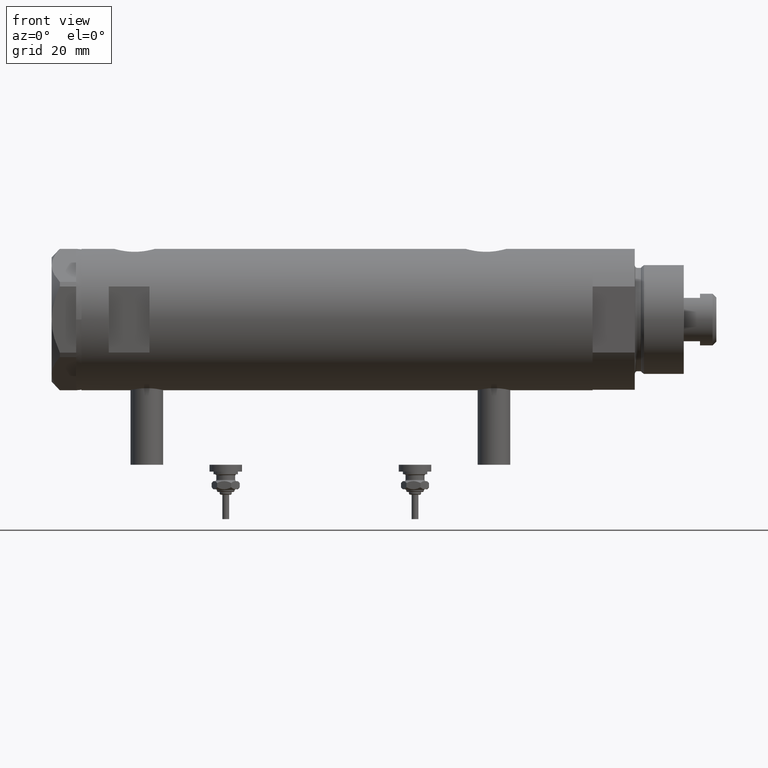
[diagram: clean part render]
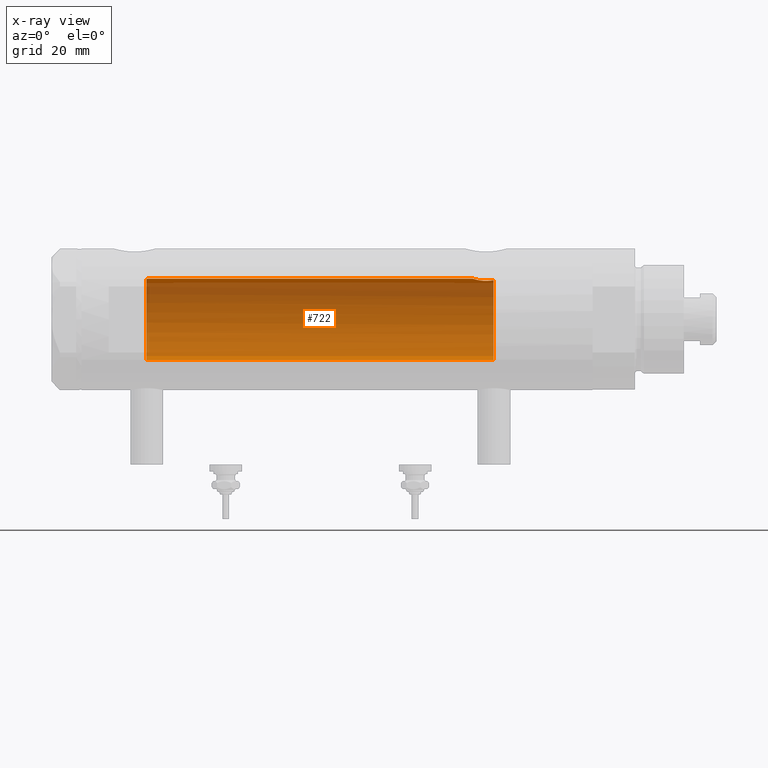
[diagram: x-ray — body ghosted, one internal face saturated and labeled with its STEP entity id]
A machine part, front view, then the same camera in x-ray: the body is ghosted and one INTERNAL B-rep face — a face not visible from any outside direction — is saturated and labeled: STEP entity #722.
In plain terms, the highlighted cylindrical surface (partial cylindrical patch) has radius 15 mm, axis along (1, 0, -0).
Its self-contained STEP definition (entity closure, byte-faithful):
#106 = CARTESIAN_POINT ( 'NONE',  ( 0.000000000000000000, 0.000000000000000000, -57.55000000000000426 ) ) ;
#117 = CARTESIAN_POINT ( 'NONE',  ( -15.00000000000000000, 0.000000000000000000, 70.15000000000000568 ) ) ;
#223 = CARTESIAN_POINT ( 'NONE',  ( 14.72004460873233000, 2.909758128378248987, -50.82614485536701210 ) ) ;
#262 = ORIENTED_EDGE ( 'NONE', *, *, #6178, .T. ) ;
#386 = CARTESIAN_POINT ( 'NONE',  ( 14.82638779339053947, 2.275571356824483082, 70.15000000000000568 ) ) ;
#436 = CARTESIAN_POINT ( 'NONE',  ( 14.25831405531604545, 4.659025730769700502, -56.16798855846089822 ) ) ;
#687 = CARTESIAN_POINT ( 'NONE',  ( 0.000000000000000000, 0.000000000000000000, 70.15000000000000568 ) ) ;
#696 = CARTESIAN_POINT ( 'NONE',  ( 14.84719462287499958, 2.145357993387301043, -50.37798666051605778 ) ) ;
#714 = CARTESIAN_POINT ( 'NONE',  ( 14.93895715383719214, 1.365440931094928256, 69.77638192761232006 ) ) ;
#722 = ADVANCED_FACE ( 'NONE', ( #4786 ), #4371, .F. ) ;
#724 = DIRECTION ( 'NONE',  ( 1.000000000000000000, 0.000000000000000000, 0.000000000000000000 ) ) ;
#913 = CARTESIAN_POINT ( 'NONE',  ( 15.00000000000000000, 5.959273468635536151E-16, -49.88499999999999801 ) ) ;
#915 = CARTESIAN_POINT ( 'NONE',  ( 14.33601656325283180, 4.414747171699214157, -52.69405684818109137 ) ) ;
#948 = VERTEX_POINT ( 'NONE', #5644 ) ;
#1104 = AXIS2_PLACEMENT_3D ( 'NONE', #687, #4562, #724 ) ;
#1173 = CARTESIAN_POINT ( 'NONE',  ( 14.90012193493785198, 1.740148100968098577, -50.20148967824481900 ) ) ;
#1226 = CARTESIAN_POINT ( 'NONE',  ( 15.00000000000000178, 0.3998316629799374411, 69.58500000000002217 ) ) ;
#1311 = CARTESIAN_POINT ( 'NONE',  ( 14.46277203719950855, 3.978470183374505975, -57.55000000000000426 ) ) ;
#1330 = CARTESIAN_POINT ( 'NONE',  ( 14.18274079043653124, 4.883732009304969424, -54.63167541567703722 ) ) ;
#1380 = EDGE_CURVE ( 'NONE', #5428, #1382, #3421, .T. ) ;
#1382 = VERTEX_POINT ( 'NONE', #3794 ) ;
#1467 = ORIENTED_EDGE ( 'NONE', *, *, #4849, .T. ) ;
#1484 = VERTEX_POINT ( 'NONE', #117 ) ;
#1510 = AXIS2_PLACEMENT_3D ( 'NONE', #106, #5481, #1565 ) ;
#1565 = DIRECTION ( 'NONE',  ( -1.000000000000000000, 0.000000000000000000, 0.000000000000000000 ) ) ;
#1653 = CARTESIAN_POINT ( 'NONE',  ( 14.92306512695867049, 1.532295990539004116, -50.12730056478243768 ) ) ;
#1672 = CARTESIAN_POINT ( 'NONE',  ( -15.00000000000000000, 0.000000000000000000, 93.95000000000001705 ) ) ;
#1687 = CARTESIAN_POINT ( 'NONE',  ( 14.49939476291675078, 3.855488469592460277, -51.74998822577912705 ) ) ;
#1703 = CARTESIAN_POINT ( 'NONE',  ( 14.98404286071220604, 0.7911628595372720563, 69.63357750803344004 ) ) ;
#1707 = LINE ( 'NONE', #1672, #1911 ) ;
#1724 = CARTESIAN_POINT ( 'NONE',  ( 14.97547159671691475, 0.8856171163179413774, -49.96107436056317397 ) ) ;
#1793 = DIRECTION ( 'NONE',  ( -0.000000000000000000, -0.000000000000000000, -1.000000000000000000 ) ) ;
#1858 = ORIENTED_EDGE ( 'NONE', *, *, #4368, .F. ) ;
#1911 = VECTOR ( 'NONE', #1793, 1000.000000000000000 ) ;
#2091 = EDGE_CURVE ( 'NONE', #2417, #948, #5176, .T. ) ;
#2147 = CARTESIAN_POINT ( 'NONE',  ( 15.00000000000000000, 5.959273468635536151E-16, -49.88499999999999801 ) ) ;
#2155 = DIRECTION ( 'NONE',  ( -1.000000000000000000, 0.000000000000000000, 0.000000000000000000 ) ) ;
#2160 = CARTESIAN_POINT ( 'NONE',  ( 14.87714698525761214, 1.924825815456619793, 69.97761219789977361 ) ) ;
#2365 = CARTESIAN_POINT ( 'NONE',  ( 14.19413554982521219, 4.851369549374611623, -54.17746179061393264 ) ) ;
#2396 = CARTESIAN_POINT ( 'NONE',  ( 14.33334483745703203, 4.423389780079196143, -56.78724945987952566 ) ) ;
#2417 = VERTEX_POINT ( 'NONE', #386 ) ;
#2429 = CARTESIAN_POINT ( 'NONE',  ( 14.20808274384303971, 4.809639920165276195, -55.51496246579131366 ) ) ;
#2486 = DIRECTION ( 'NONE',  ( -0.000000000000000000, -0.000000000000000000, -1.000000000000000000 ) ) ;
#2703 = CARTESIAN_POINT ( 'NONE',  ( 14.82638779339053947, 2.275571356824483082, 70.15000000000000568 ) ) ;
#2728 = ORIENTED_EDGE ( 'NONE', *, *, #2091, .F. ) ;
#2882 = CARTESIAN_POINT ( 'NONE',  ( 14.23996709707015818, 4.714409263334266242, -53.52876674044652106 ) ) ;
#2943 = CARTESIAN_POINT ( 'NONE',  ( 14.30582738521795072, 4.511024637967008033, -56.58517547595723585 ) ) ;
#2997 = CARTESIAN_POINT ( 'NONE',  ( 0.000000000000000000, 0.000000000000000000, 93.95000000000001705 ) ) ;
#3162 = EDGE_CURVE ( 'NONE', #1484, #6082, #1707, .T. ) ;
#3188 = CARTESIAN_POINT ( 'NONE',  ( 15.00000000000000000, 0.000000000000000000, 69.58500000000000796 ) ) ;
#3241 = VECTOR ( 'NONE', #5214, 1000.000000000000000 ) ;
#3291 = CARTESIAN_POINT ( 'NONE',  ( 14.19789541567450364, 4.839422427565552631, -55.29531557750246407 ) ) ;
#3421 = B_SPLINE_CURVE_WITH_KNOTS ( 'NONE', 3,
 ( #2147, #6110, #4093, #1724, #6042, #1653, #1173, #696, #3676, #223, #4123, #1687, #3638, #915, #3892, #5312, #2882, #2365, #1330, #3291, #2429, #4318, #436, #2943, #2396, #5778, #5340, #1311 ),
 .UNSPECIFIED., .F., .F.,
 ( 4, 2, 2, 2, 2, 2, 2, 2, 2, 2, 2, 2, 2, 4 ),
 ( 0.01531448496322443745, 0.01597936247866482348, 0.01664423999410521299, 0.01730911750954559902, 0.01797399502498598853, 0.01930375005586676060, 0.02063350508674753614, 0.02129838260218791524, 0.02196326011762829433, 0.02329301514850904906, 0.02395789266394942815, 0.02462277017938980378, 0.02528764769483018288, 0.02595252521027056197 ),
 .UNSPECIFIED. ) ;
#3638 = CARTESIAN_POINT ( 'NONE',  ( 14.42796195111116830, 4.108450791336244023, -52.10736184290815487 ) ) ;
#3676 = CARTESIAN_POINT ( 'NONE',  ( 14.81695028448457130, 2.344053258630407033, -50.48122781573722051 ) ) ;
#3794 = CARTESIAN_POINT ( 'NONE',  ( 14.46277203719950855, 3.978470183374505975, -57.55000000000000426 ) ) ;
#3892 = CARTESIAN_POINT ( 'NONE',  ( 14.30778609824508152, 4.504821240468950272, -52.89964104205773765 ) ) ;
#4068 = CIRCLE ( 'NONE', #1510, 15.00000000000000000 ) ;
#4093 = CARTESIAN_POINT ( 'NONE',  ( 14.99509227038106296, 0.4430293709771138122, -49.90006686301530436 ) ) ;
#4123 = CARTESIAN_POINT ( 'NONE',  ( 14.64710079709035107, 3.249565827911971017, -51.10237283776275774 ) ) ;
#4156 = CARTESIAN_POINT ( 'NONE',  ( -15.00000000000000000, 0.000000000000000000, -57.55000000000000426 ) ) ;
#4217 = CARTESIAN_POINT ( 'NONE',  ( 15.00000000000000000, 1.836970198721029589E-15, 93.95000000000001705 ) ) ;
#4318 = CARTESIAN_POINT ( 'NONE',  ( 14.23822651595894584, 4.719656459720482644, -55.95110225956647554 ) ) ;
#4368 = EDGE_CURVE ( 'NONE', #948, #5428, #5743, .T. ) ;
#4371 = CYLINDRICAL_SURFACE ( 'NONE', #4641, 15.00000000000000000 ) ;
#4562 = DIRECTION ( 'NONE',  ( 0.000000000000000000, 0.000000000000000000, 1.000000000000000000 ) ) ;
#4589 = CARTESIAN_POINT ( 'NONE',  ( 14.85285765243877876, 2.103108122960808402, 70.05873200114290000 ) ) ;
#4641 = AXIS2_PLACEMENT_3D ( 'NONE', #2997, #2486, #2155 ) ;
#4786 = FACE_OUTER_BOUND ( 'NONE', #5126, .T. ) ;
#4849 = EDGE_CURVE ( 'NONE', #6082, #1382, #4068, .T. ) ;
#5126 = EDGE_LOOP ( 'NONE', ( #1858, #2728, #262, #5589, #1467, #6209 ) ) ;
#5176 = B_SPLINE_CURVE_WITH_KNOTS ( 'NONE', 3,
 ( #2703, #4589, #2160, #6054, #714, #1703, #1226, #3188 ),
 .UNSPECIFIED., .F., .F.,
 ( 4, 2, 2, 4 ),
 ( 0.02826119741494477131, 0.02885214443185063829, 0.02944309144875650874, 0.03062498548256823577 ),
 .UNSPECIFIED. ) ;
#5214 = DIRECTION ( 'NONE',  ( -0.000000000000000000, -0.000000000000000000, -1.000000000000000000 ) ) ;
#5310 = CIRCLE ( 'NONE', #1104, 15.00000000000000000 ) ;
#5312 = CARTESIAN_POINT ( 'NONE',  ( 14.25987224063200465, 4.654266980155760791, -53.31645838593741615 ) ) ;
#5340 = CARTESIAN_POINT ( 'NONE',  ( 14.42780822725581125, 4.105572710089619548, -57.36940228115441442 ) ) ;
#5428 = VERTEX_POINT ( 'NONE', #913 ) ;
#5481 = DIRECTION ( 'NONE',  ( 0.000000000000000000, 0.000000000000000000, -1.000000000000000000 ) ) ;
#5589 = ORIENTED_EDGE ( 'NONE', *, *, #3162, .T. ) ;
#5644 = CARTESIAN_POINT ( 'NONE',  ( 15.00000000000000000, 0.000000000000000000, 69.58500000000000796 ) ) ;
#5743 = LINE ( 'NONE', #4217, #3241 ) ;
#5778 = CARTESIAN_POINT ( 'NONE',  ( 14.39420242489971535, 4.221147702577646932, -57.17871871185443666 ) ) ;
#6042 = CARTESIAN_POINT ( 'NONE',  ( 14.96070684509191295, 1.105917936056761253, -50.00719211967313527 ) ) ;
#6054 = CARTESIAN_POINT ( 'NONE',  ( 14.92022334814851448, 1.556082286439816720, 69.83634472570267349 ) ) ;
#6082 = VERTEX_POINT ( 'NONE', #4156 ) ;
#6110 = CARTESIAN_POINT ( 'NONE',  ( 14.99999999999999822, 0.2215872191885691345, -49.88500000000000512 ) ) ;
#6178 = EDGE_CURVE ( 'NONE', #2417, #1484, #5310, .T. ) ;
#6209 = ORIENTED_EDGE ( 'NONE', *, *, #1380, .F. ) ;